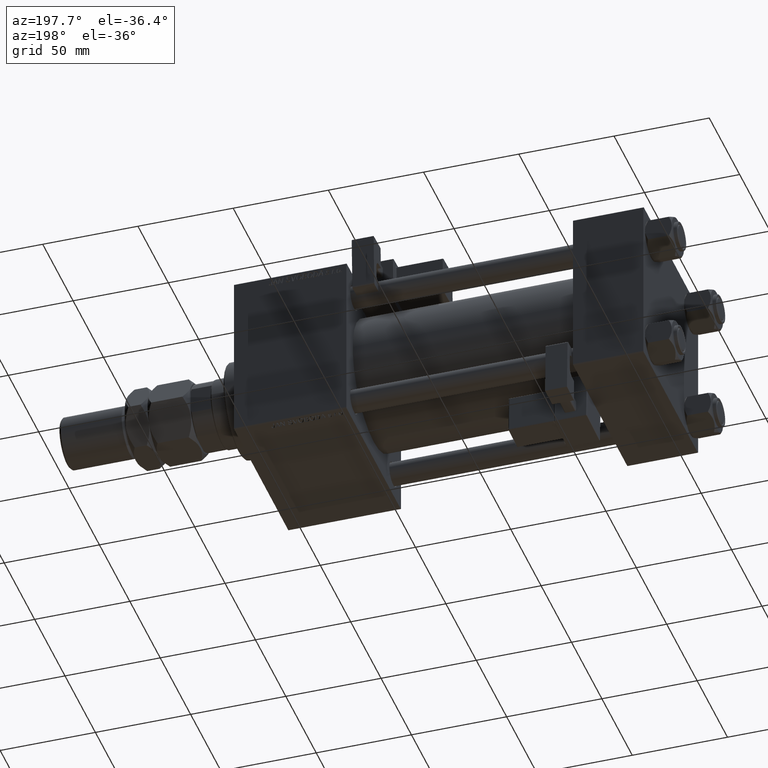
[diagram: clean part render]
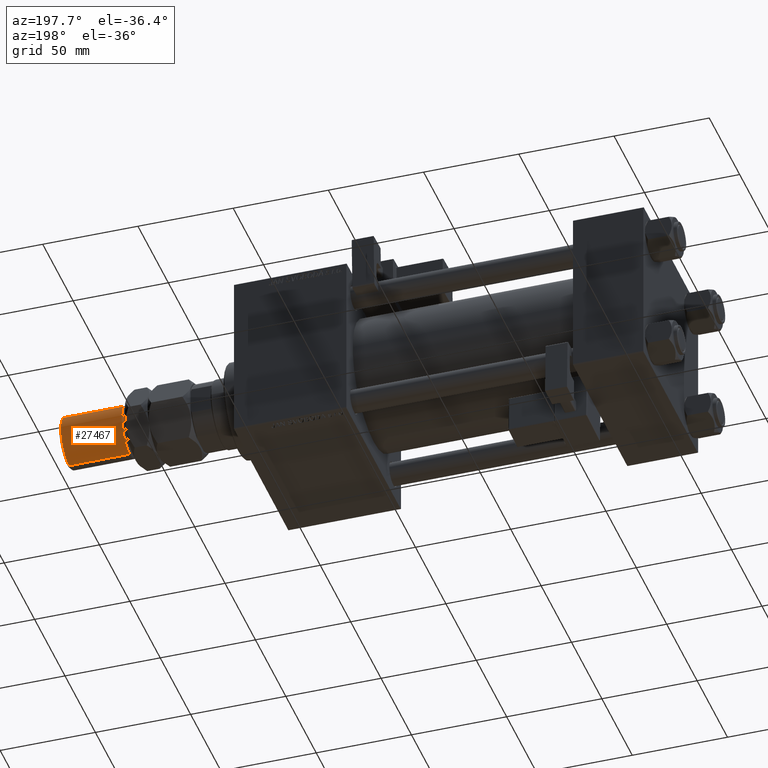
[diagram: same view with one face highlighted and labeled with its STEP entity id]
A machine part, auxiliary view. The second image highlights one B-rep face of the part: STEP entity #27467.
In plain terms, the highlighted cylindrical surface (edge-blend (fillet) strip) has radius 13.5 mm, axis along (-1, -0, 0).
Its self-contained STEP definition (entity closure, byte-faithful):
#1090 = CYLINDRICAL_SURFACE ( 'NONE', #12331, 13.50000000000000000 ) ;
#3852 = DIRECTION ( 'NONE',  ( 1.000000000000000000, 0.000000000000000000, 0.000000000000000000 ) ) ;
#5465 = DIRECTION ( 'NONE',  ( -0.000000000000000000, -0.000000000000000000, -1.000000000000000000 ) ) ;
#5893 = VERTEX_POINT ( 'NONE', #27669 ) ;
#5902 = ORIENTED_EDGE ( 'NONE', *, *, #24697, .F. ) ;
#6524 = VERTEX_POINT ( 'NONE', #12408 ) ;
#6589 = DIRECTION ( 'NONE',  ( 0.000000000000000000, 0.000000000000000000, -1.000000000000000000 ) ) ;
#8768 = DIRECTION ( 'NONE',  ( -0.000000000000000000, -0.000000000000000000, 1.000000000000000000 ) ) ;
#8811 = ORIENTED_EDGE ( 'NONE', *, *, #35905, .T. ) ;
#9042 = EDGE_CURVE ( 'NONE', #6524, #29796, #29903, .T. ) ;
#9819 = ORIENTED_EDGE ( 'NONE', *, *, #27321, .T. ) ;
#11964 = CARTESIAN_POINT ( 'NONE',  ( 13.50000000000000000, 1.653273178848926867E-15, 37.00000000000000000 ) ) ;
#12167 = VECTOR ( 'NONE', #25533, 1000.000000000000000 ) ;
#12331 = AXIS2_PLACEMENT_3D ( 'NONE', #22431, #5465, #17536 ) ;
#12408 = CARTESIAN_POINT ( 'NONE',  ( 13.50000000000000000, 1.653273178848926867E-15, 68.99999999999998579 ) ) ;
#16990 = CARTESIAN_POINT ( 'NONE',  ( 0.000000000000000000, 0.000000000000000000, 37.00000000000000000 ) ) ;
#17061 = CARTESIAN_POINT ( 'NONE',  ( 13.50000000000000000, 1.653273178848926867E-15, 70.00000000000000000 ) ) ;
#17536 = DIRECTION ( 'NONE',  ( -1.000000000000000000, 0.000000000000000000, 0.000000000000000000 ) ) ;
#17800 = AXIS2_PLACEMENT_3D ( 'NONE', #47578, #6589, #52506 ) ;
#22431 = CARTESIAN_POINT ( 'NONE',  ( 0.000000000000000000, 0.000000000000000000, 70.00000000000000000 ) ) ;
#22789 = CIRCLE ( 'NONE', #29769, 13.50000000000000000 ) ;
#24697 = EDGE_CURVE ( 'NONE', #35938, #5893, #49309, .T. ) ;
#25533 = DIRECTION ( 'NONE',  ( -0.000000000000000000, -0.000000000000000000, -1.000000000000000000 ) ) ;
#27321 = EDGE_CURVE ( 'NONE', #29796, #5893, #22789, .T. ) ;
#27467 = ADVANCED_FACE ( 'NONE', ( #42923 ), #1090, .T. ) ;
#27669 = CARTESIAN_POINT ( 'NONE',  ( -13.50000000000000000, 0.000000000000000000, 37.00000000000000000 ) ) ;
#28250 = CIRCLE ( 'NONE', #17800, 13.50000000000000000 ) ;
#28569 = CARTESIAN_POINT ( 'NONE',  ( -13.50000000000000000, 0.000000000000000000, 70.00000000000000000 ) ) ;
#29769 = AXIS2_PLACEMENT_3D ( 'NONE', #16990, #8768, #3852 ) ;
#29796 = VERTEX_POINT ( 'NONE', #11964 ) ;
#29903 = LINE ( 'NONE', #17061, #12167 ) ;
#30941 = CARTESIAN_POINT ( 'NONE',  ( -13.50000000000000000, 0.000000000000000000, 68.99999999999998579 ) ) ;
#35905 = EDGE_CURVE ( 'NONE', #35938, #6524, #28250, .T. ) ;
#35938 = VERTEX_POINT ( 'NONE', #30941 ) ;
#40851 = DIRECTION ( 'NONE',  ( -0.000000000000000000, -0.000000000000000000, -1.000000000000000000 ) ) ;
#41744 = EDGE_LOOP ( 'NONE', ( #8811, #50736, #9819, #5902 ) ) ;
#41882 = VECTOR ( 'NONE', #40851, 1000.000000000000000 ) ;
#42923 = FACE_OUTER_BOUND ( 'NONE', #41744, .T. ) ;
#47578 = CARTESIAN_POINT ( 'NONE',  ( 0.000000000000000000, 0.000000000000000000, 68.99999999999998579 ) ) ;
#49309 = LINE ( 'NONE', #28569, #41882 ) ;
#50736 = ORIENTED_EDGE ( 'NONE', *, *, #9042, .T. ) ;
#52506 = DIRECTION ( 'NONE',  ( 1.000000000000000000, 0.000000000000000000, 0.000000000000000000 ) ) ;